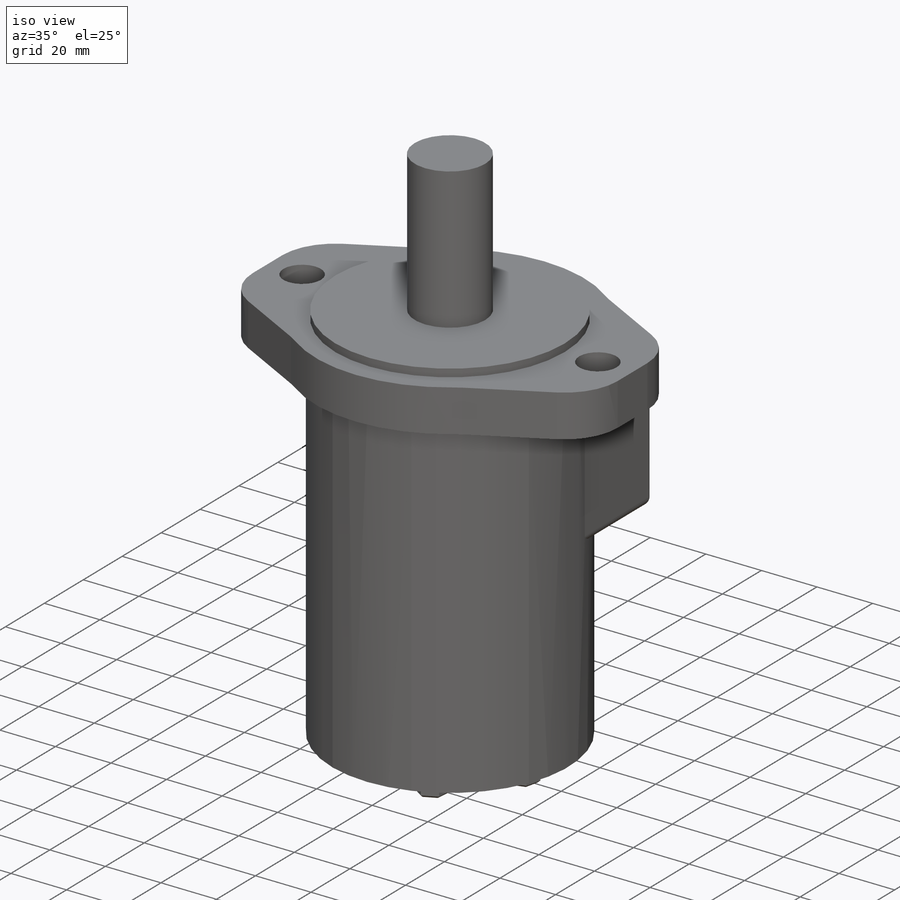
[diagram: iso view]
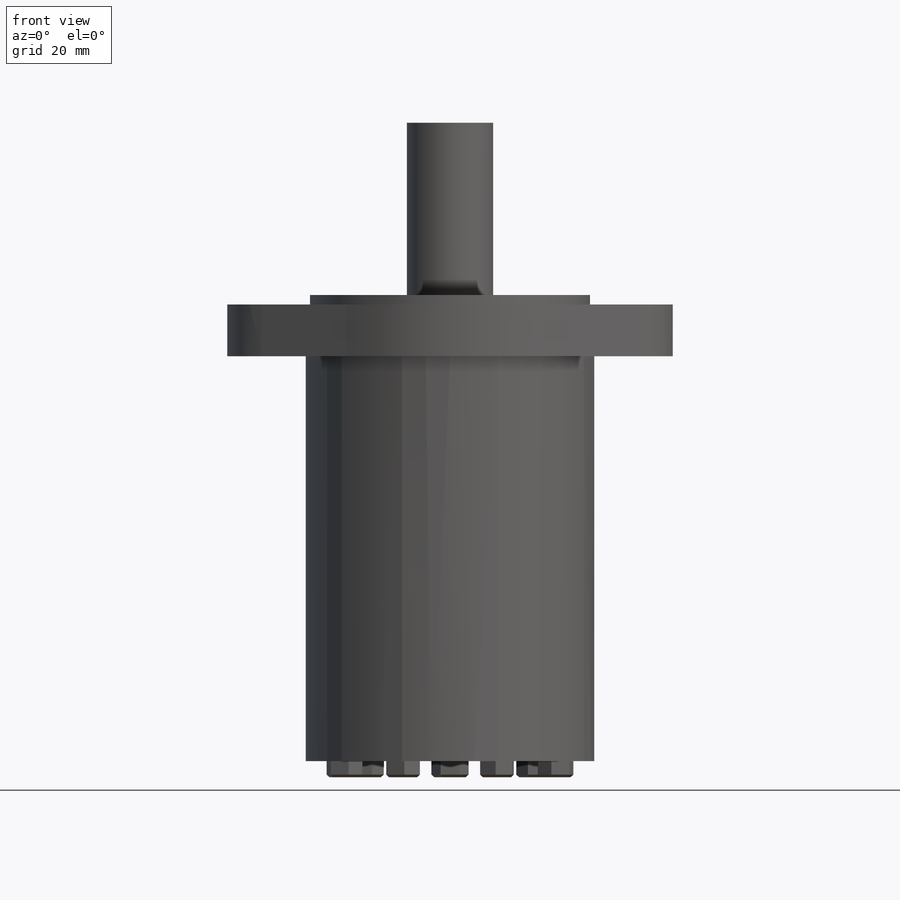
[diagram: front view]
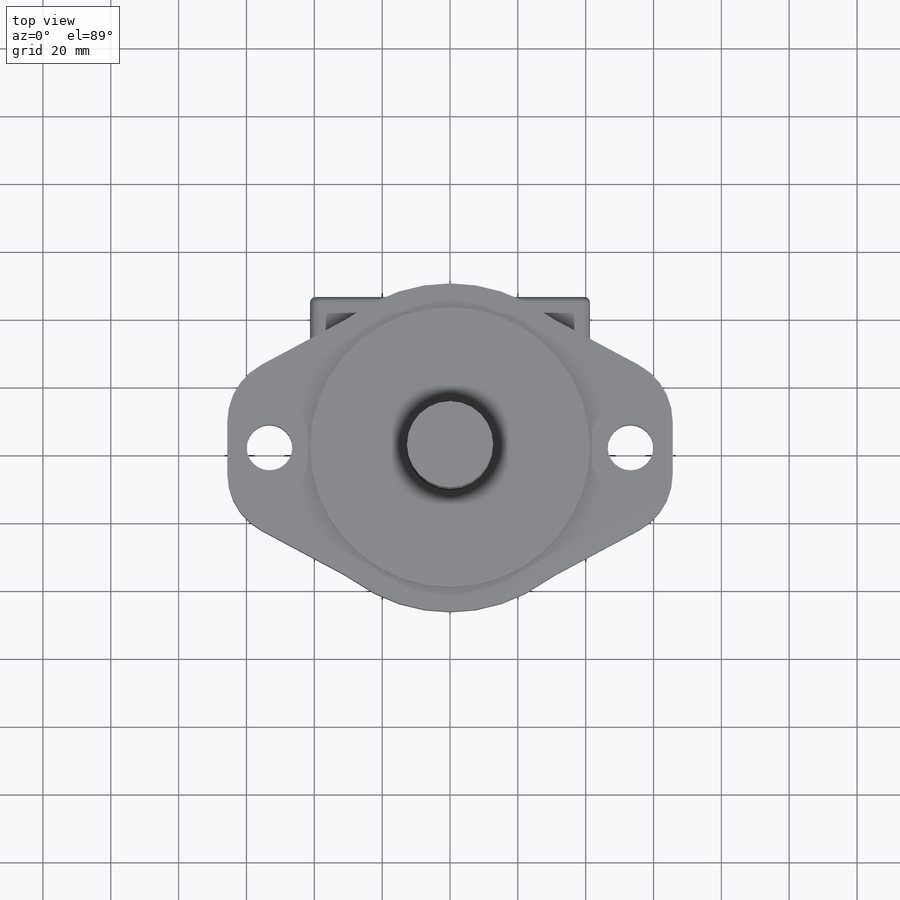
[diagram: top view]
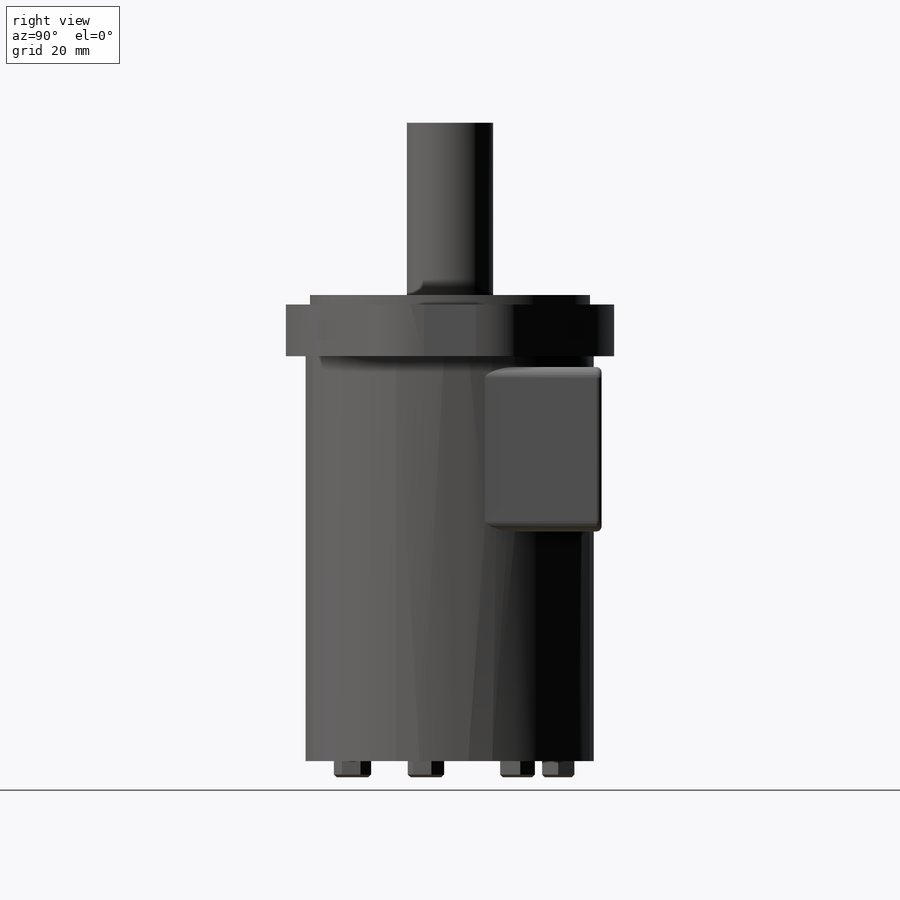
[diagram: right view]
SOLIDWORKS PART (.sldprt)
format: sldprt  version: not decoded by parser v0  size: 489,472 bytes
history: native  units: mm
features: sketch x13, extrude x6, fillet x3, hole x3, thread x3, material x1, chamfer x1, pattern_circular x1, cut_extrude x1 (+11 scaffold rows collapsed)
feature tree (43):
  scaffold x11  (default folders/planes/origin — collapsed)
  material  "Material <not specified>"
  sketch  "Sketch1"  dims[D1=82.55mm]
  extrude  "Boss-Extrude1"  Depth=2.794mm
  sketch  "Sketch2"  dims[D1=85.09mm]
  extrude  "Boss-Extrude2"  Depth=134.62mm
  sketch  "Sketch3"  dims[D1=~60.467577deg]
  extrude  "Boss-Extrude3"  Depth=4.7625mm
  chamfer  "Chamfer1"  Distance=0.79375mm Angle=45deg
  pattern_circular  "CirPattern1"  Count=7 Angle=360deg
  sketch  "Sketch4"  dims[D1=6.35mm]
  cut_extrude  "Cut-Extrude1"  Depth=9.525mm
  sketch  "Sketch5"  dims[c1.D1=96.774mm c1.D3=13.462mm c1.D4=13.462mm c1.D5=13.462mm c2.D1=48.387mm c2.D2=131.318mm c2.D4=53.213mm c2.D5=53.213mm]
  extrude  "Boss-Extrude4"  Depth=15.24mm
  fillet  "Fillet1"  Radius=19.05mm
  sketch  "Sketch6"  dims[c1.D2=12.7mm c1.D3=12.7mm c1.D4=12.7mm c1.D1=82.55mm c2.D3=22.86mm c2.D4=42.672mm c2.D5=3.175mm]
  extrude  "Boss-Extrude5"  Depth=44.704mm
  fillet  "Fillet2"  Radius=3.175mm
  fillet  "Fillet3"  Radius=1.5875mm
  sketch  "Sketch7"  dims[D1=25.4mm]
  extrude  "Boss-Extrude6"  Depth=50.8mm
  hole  "1/2 NPT Tapped Hole1"  Diameter=17.8562mm Depth=23.114mm
  sketch  "Sketch9"
  sketch  "Sketch8"  dims[hole-wizard template sketch: 50 standard entries collapsed; hole parameters kept: c13.Tap Drill Dia.=17.8562mm c13.Tap Drill Depth=23.114mm c13.Thread Dia.=~19.765594mm c13.D4=~22.362017mm c13.Thread Angle=3.43deg c13.Thread Depth=13.462mm c13.D6=~25.48394mm c13.Drill Angle=118.0deg]
  thread  "Hole Thread1"  Diameter=13.462mm  [1 undecoded]
  hole  "1/2 NPT Tapped Hole2"  Diameter=17.8562mm Depth=23.114mm
  sketch  "Sketch11"
  sketch  "Sketch10"  dims[hole-wizard template sketch: 50 standard entries collapsed; hole parameters kept: c13.Tap Drill Dia.=17.8562mm c13.Tap Drill Depth=23.114mm c13.Thread Dia.=~19.765594mm c13.D4=~22.362017mm c13.Thread Angle=3.43deg c13.Thread Depth=13.462mm c13.D6=~25.48394mm c13.Drill Angle=118.0deg]
  thread  "Hole Thread2"  Diameter=13.462mm  [1 undecoded]
  hole  "7/16-20 Tapped Hole1"  Diameter=9.92124mm Depth=28.702mm
  sketch  "Sketch13"
  sketch  "Sketch12"  dims[hole-wizard template sketch: 46 standard entries collapsed; hole parameters kept: c15.Tap Drill Dia.=~9.92124mm c15.Tap Drill Depth=28.702mm c15.D3=~14.816244mm c15.Drill Angle=118.0deg]
  thread  "Hole Thread3"  Diameter=22.352mm  [1 undecoded]
decode coverage: 28 of 31 modeling features carry decoded parameters
note: ~ marks probable driven/reference dimensions
note: 3 parameter values undecoded
note: suppression state not decoded; provenance and decode notes live in map.json
